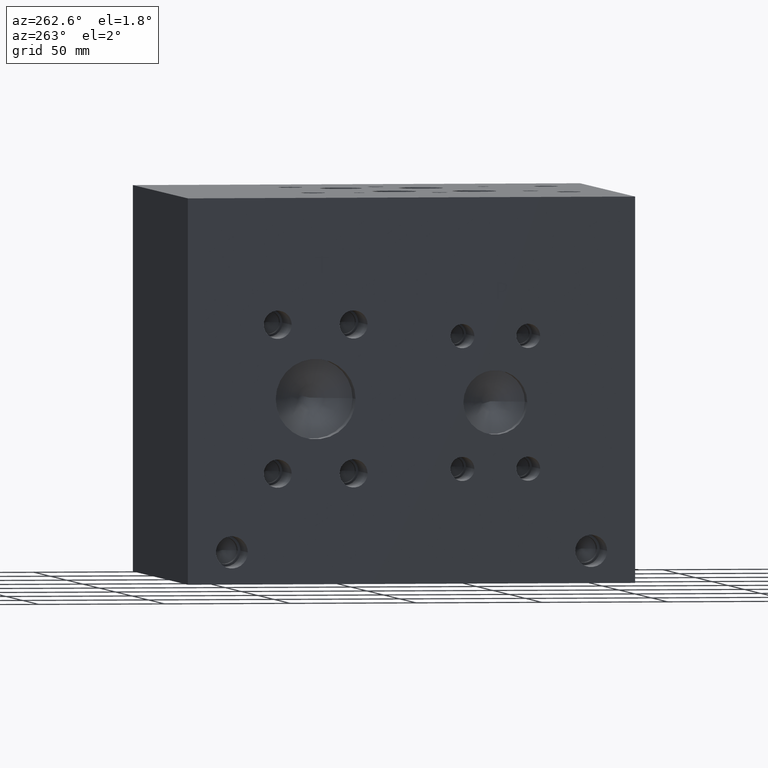
[diagram: clean part render]
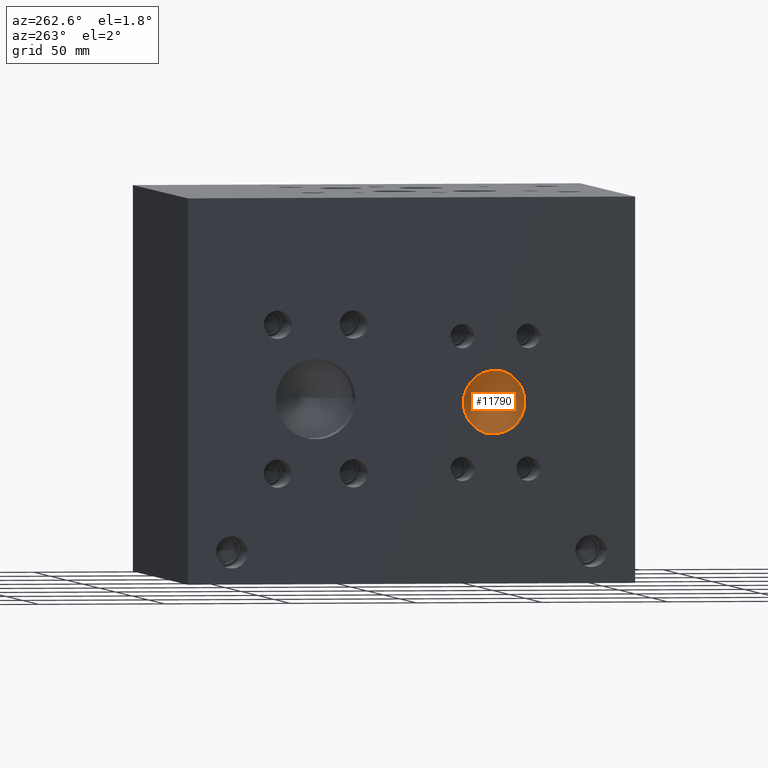
[diagram: same view with one face highlighted and labeled with its STEP entity id]
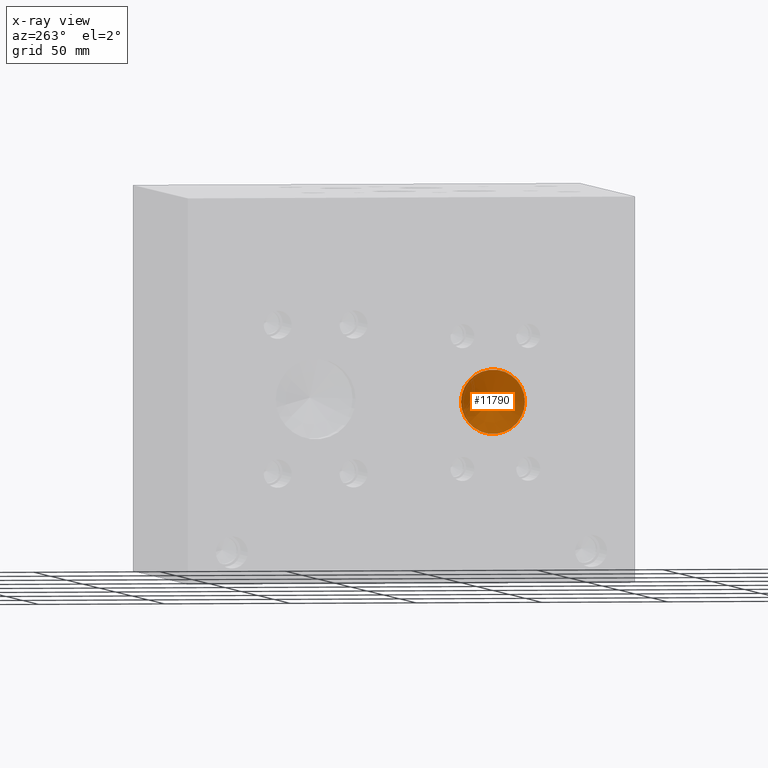
[diagram: x-ray of the same camera — body ghosted, the highlighted face saturated]
A machine part, auxiliary view. The second image highlights one B-rep face of the part: STEP entity #11790.
The next image is the same camera in x-ray: the body ghosted, the highlighted face saturated — about 0% of this face is hidden behind the body in this view.
In plain terms, the highlighted conical surface has half-angle 60 deg.
Its self-contained STEP definition (entity closure, byte-faithful):
#123=CONICAL_SURFACE('',#12480,6.35,1.0471975511966);
#316=CIRCLE('',#12481,12.7);
#317=CIRCLE('',#12482,12.7);
#1482=FACE_OUTER_BOUND('',#2189,.T.);
#2189=EDGE_LOOP('',(#10195,#10196,#10197,#10198));
#3365=LINE('',#19598,#4480);
#4480=VECTOR('',#14907,6.35);
#5706=VERTEX_POINT('',#19594);
#5707=VERTEX_POINT('',#19595);
#5708=VERTEX_POINT('',#19597);
#7270=EDGE_CURVE('',#5706,#5707,#316,.T.);
#7271=EDGE_CURVE('',#5707,#5708,#3365,.T.);
#7272=EDGE_CURVE('',#5707,#5706,#317,.T.);
#10195=ORIENTED_EDGE('',*,*,#7270,.T.);
#10196=ORIENTED_EDGE('',*,*,#7271,.T.);
#10197=ORIENTED_EDGE('',*,*,#7271,.F.);
#10198=ORIENTED_EDGE('',*,*,#7272,.T.);
#11790=ADVANCED_FACE('',(#1482),#123,.F.);
#12480=AXIS2_PLACEMENT_3D('',#19593,#14903,#14904);
#12481=AXIS2_PLACEMENT_3D('',#19596,#14905,#14906);
#12482=AXIS2_PLACEMENT_3D('',#19599,#14908,#14909);
#14903=DIRECTION('center_axis',(-1.,0.,0.));
#14904=DIRECTION('ref_axis',(0.,1.,0.));
#14905=DIRECTION('center_axis',(-1.,0.,0.));
#14906=DIRECTION('ref_axis',(0.,1.,0.));
#14907=DIRECTION('',(0.5,0.866025403784439,-1.06057523872491E-16));
#14908=DIRECTION('center_axis',(-1.,0.,0.));
#14909=DIRECTION('ref_axis',(0.,1.,0.));
#19593=CARTESIAN_POINT('Origin',(10.9985242093541,55.5752,71.4248));
#19594=CARTESIAN_POINT('',(7.33235,68.2752,71.4248));
#19595=CARTESIAN_POINT('',(7.33235,42.8752,71.4248));
#19596=CARTESIAN_POINT('Origin',(7.33235,55.5752,71.4248));
#19597=CARTESIAN_POINT('',(14.6646984187083,55.5752,71.4248));
#19598=CARTESIAN_POINT('',(10.9985242093541,49.2252,71.4248));
#19599=CARTESIAN_POINT('Origin',(7.33235,55.5752,71.4248));